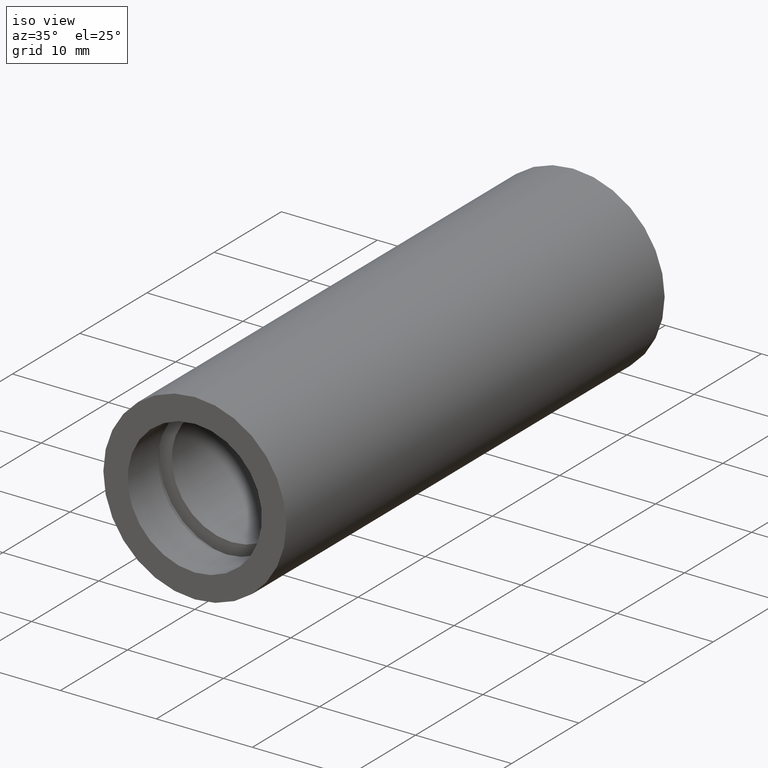
[diagram: clean part render]
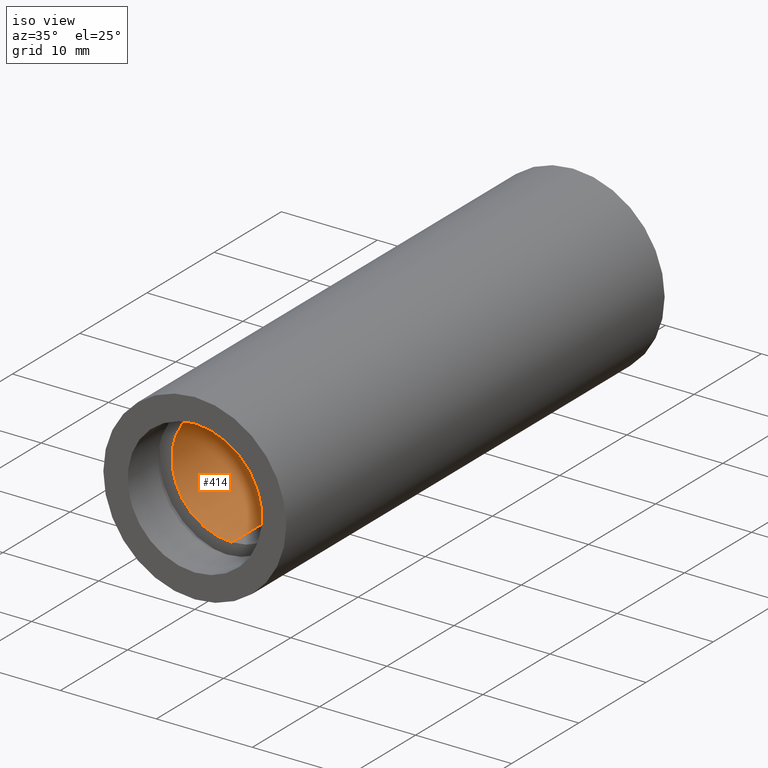
[diagram: same view with one face highlighted and labeled with its STEP entity id]
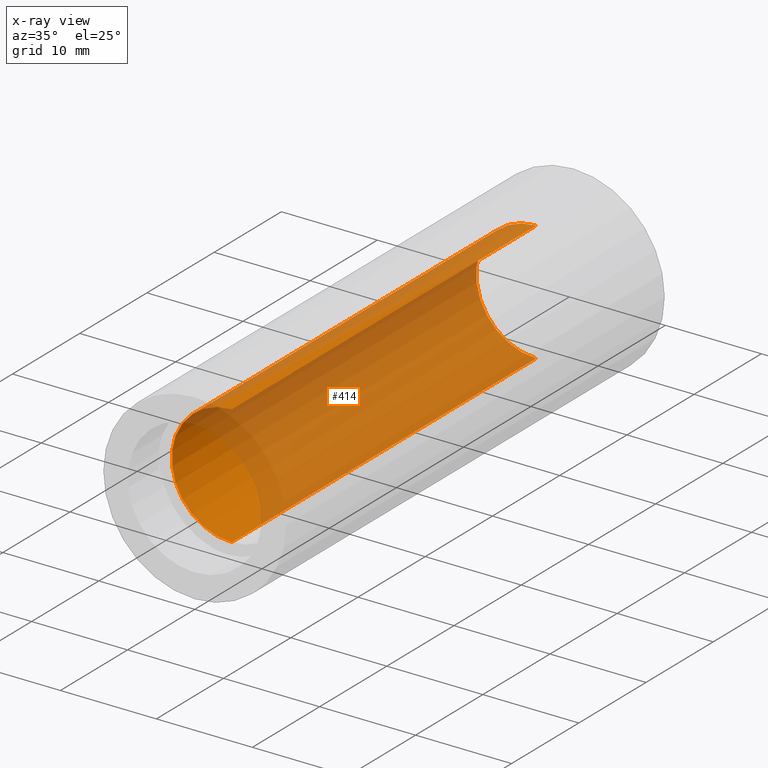
[diagram: x-ray of the same camera — body ghosted, the highlighted face saturated]
A machine part, iso view. The second image highlights one B-rep face of the part: STEP entity #414.
The next image is the same camera in x-ray: the body ghosted, the highlighted face saturated — about 81% of this face is hidden behind the body in this view.
In plain terms, the highlighted cylindrical surface (partial cylindrical patch) has radius 6.25 mm, axis along (-0, 1, -0).
Its self-contained STEP definition (entity closure, byte-faithful):
#4 = VERTEX_POINT ( 'NONE', #77 ) ;
#26 = DIRECTION ( 'NONE',  ( -0.0000000000000000000, 1.000000000000000000, -0.0000000000000000000 ) ) ;
#32 = DIRECTION ( 'NONE',  ( -0.0000000000000000000, 1.000000000000000000, -0.0000000000000000000 ) ) ;
#48 = AXIS2_PLACEMENT_3D ( 'NONE', #291, #246, #108 ) ;
#62 = VERTEX_POINT ( 'NONE', #596 ) ;
#67 = EDGE_CURVE ( 'NONE', #62, #432, #388, .T. ) ;
#70 = CARTESIAN_POINT ( 'NONE',  ( 7.654042494670981300E-016, 50.79999999999998300, -6.250000000000019500 ) ) ;
#77 = CARTESIAN_POINT ( 'NONE',  ( 7.654042494670981300E-016, 5.499999999999976900, -6.250000000000019500 ) ) ;
#101 = CYLINDRICAL_SURFACE ( 'NONE', #48, 6.250000000000019500 ) ;
#108 = DIRECTION ( 'NONE',  ( 0.0000000000000000000, 0.0000000000000000000, 1.000000000000000000 ) ) ;
#136 = CARTESIAN_POINT ( 'NONE',  ( 0.0000000000000000000, 50.79999999999998300, 0.0000000000000000000 ) ) ;
#160 = EDGE_CURVE ( 'NONE', #620, #432, #479, .T. ) ;
#184 = DIRECTION ( 'NONE',  ( 0.0000000000000000000, 0.0000000000000000000, 1.000000000000000000 ) ) ;
#192 = ORIENTED_EDGE ( 'NONE', *, *, #446, .F. ) ;
#222 = EDGE_CURVE ( 'NONE', #4, #620, #610, .T. ) ;
#237 = AXIS2_PLACEMENT_3D ( 'NONE', #136, #32, #184 ) ;
#238 = ORIENTED_EDGE ( 'NONE', *, *, #160, .T. ) ;
#246 = DIRECTION ( 'NONE',  ( -0.0000000000000000000, 1.000000000000000000, -0.0000000000000000000 ) ) ;
#261 = FACE_OUTER_BOUND ( 'NONE', #416, .T. ) ;
#291 = CARTESIAN_POINT ( 'NONE',  ( 0.0000000000000000000, 161.3761669434274500, 0.0000000000000000000 ) ) ;
#294 = DIRECTION ( 'NONE',  ( 0.0000000000000000000, 0.0000000000000000000, 1.000000000000000000 ) ) ;
#367 = CIRCLE ( 'NONE', #392, 6.250000000000019500 ) ;
#388 = LINE ( 'NONE', #547, #500 ) ;
#392 = AXIS2_PLACEMENT_3D ( 'NONE', #540, #585, #294 ) ;
#414 = ADVANCED_FACE ( 'NONE', ( #261 ), #101, .F. ) ;
#416 = EDGE_LOOP ( 'NONE', ( #192, #563, #238, #582 ) ) ;
#432 = VERTEX_POINT ( 'NONE', #533 ) ;
#446 = EDGE_CURVE ( 'NONE', #4, #62, #367, .T. ) ;
#467 = DIRECTION ( 'NONE',  ( -0.0000000000000000000, 1.000000000000000000, -0.0000000000000000000 ) ) ;
#479 = CIRCLE ( 'NONE', #237, 6.250000000000019500 ) ;
#500 = VECTOR ( 'NONE', #26, 1000.000000000000000 ) ;
#533 = CARTESIAN_POINT ( 'NONE',  ( 0.0000000000000000000, 50.79999999999998300, 6.250000000000019500 ) ) ;
#540 = CARTESIAN_POINT ( 'NONE',  ( 0.0000000000000000000, 5.499999999999976900, 0.0000000000000000000 ) ) ;
#547 = CARTESIAN_POINT ( 'NONE',  ( 0.0000000000000000000, 161.3761669434274500, 6.250000000000019500 ) ) ;
#557 = VECTOR ( 'NONE', #467, 1000.000000000000000 ) ;
#562 = CARTESIAN_POINT ( 'NONE',  ( 7.654042494670981300E-016, 161.3761669434274500, -6.250000000000019500 ) ) ;
#563 = ORIENTED_EDGE ( 'NONE', *, *, #222, .T. ) ;
#582 = ORIENTED_EDGE ( 'NONE', *, *, #67, .F. ) ;
#585 = DIRECTION ( 'NONE',  ( -0.0000000000000000000, 1.000000000000000000, -0.0000000000000000000 ) ) ;
#596 = CARTESIAN_POINT ( 'NONE',  ( 0.0000000000000000000, 5.499999999999976900, 6.250000000000019500 ) ) ;
#610 = LINE ( 'NONE', #562, #557 ) ;
#620 = VERTEX_POINT ( 'NONE', #70 ) ;